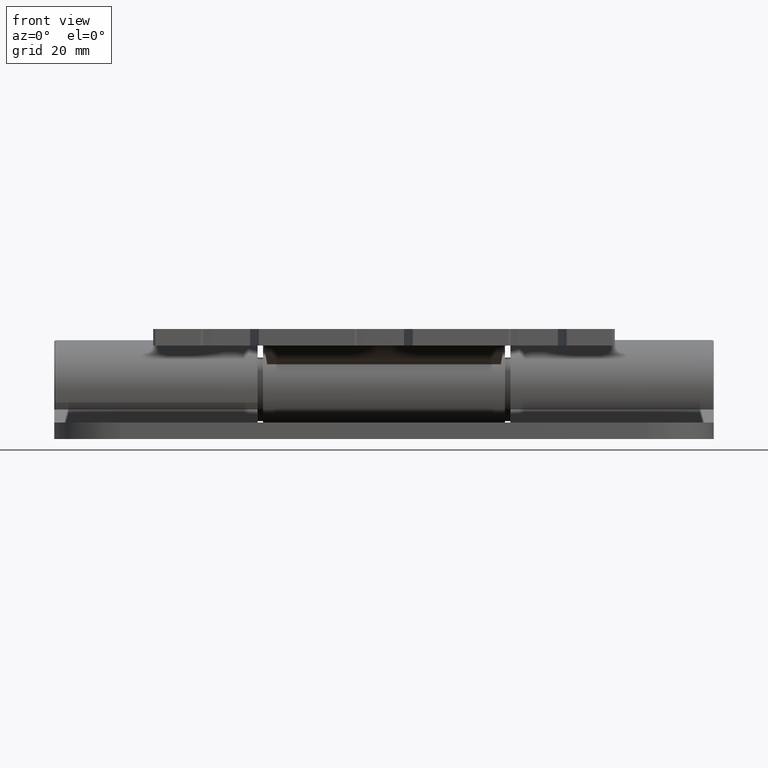
[diagram: clean part render]
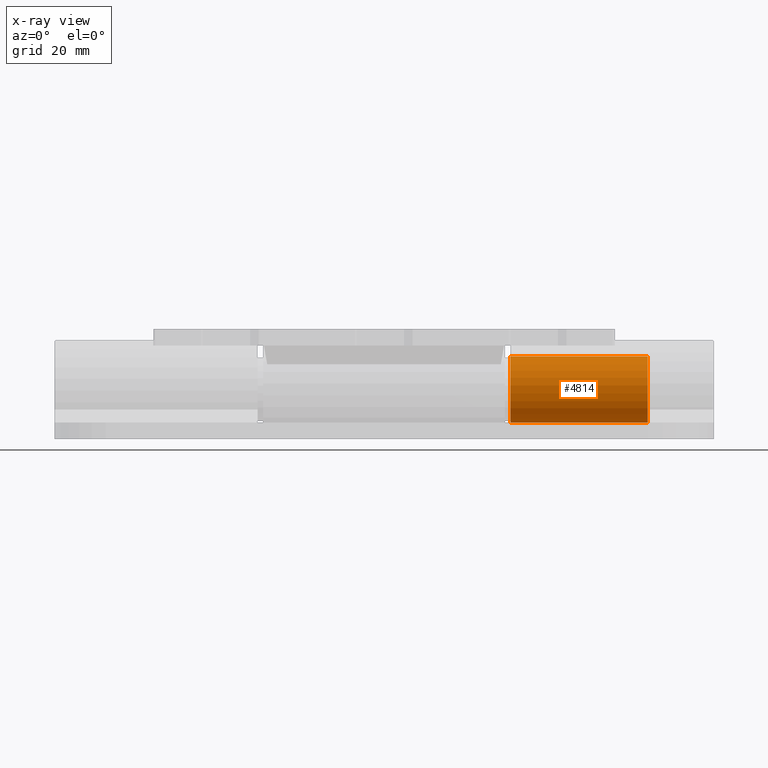
[diagram: x-ray — body ghosted, one internal face saturated and labeled with its STEP entity id]
A machine part, front view, then the same camera in x-ray: the body is ghosted and one INTERNAL B-rep face — a face not visible from any outside direction — is saturated and labeled: STEP entity #4814.
In plain terms, the highlighted cylindrical surface (bore or boss wall) has radius 6 mm, axis along (-1, -0, -0).
Its self-contained STEP definition (entity closure, byte-faithful):
#128 = EDGE_LOOP ( 'NONE', ( #10851 ) ) ;
#385 = CARTESIAN_POINT ( 'NONE',  ( 25.00000000000007100, -3.469446951953620500E-014, 1.474514954580285100E-014 ) ) ;
#594 = CARTESIAN_POINT ( 'NONE',  ( 25.50000000000007100, -1.561251128379126100E-014, 8.673617379884120300E-016 ) ) ;
#672 = AXIS2_PLACEMENT_3D ( 'NONE', #1428, #3585, #13636 ) ;
#1428 = CARTESIAN_POINT ( 'NONE',  ( 0.0000000000000000000, 0.0000000000000000000, 0.0000000000000000000 ) ) ;
#1516 = EDGE_CURVE ( 'NONE', #12175, #12175, #1705, .T. ) ;
#1587 = CYLINDRICAL_SURFACE ( 'NONE', #7143, 6.000000000000010700 ) ;
#1705 = CIRCLE ( 'NONE', #11119, 6.000000000000010700 ) ;
#1716 = DIRECTION ( 'NONE',  ( -1.000000000000000000, -4.444556404584033400E-017, -5.812784225393302300E-017 ) ) ;
#2946 = VERTEX_POINT ( 'NONE', #8855 ) ;
#3585 = DIRECTION ( 'NONE',  ( -1.000000000000000000, -4.444556404584033400E-017, -5.812784225393302300E-017 ) ) ;
#4814 = ADVANCED_FACE ( 'NONE', ( #5793, #6481 ), #1587, .F. ) ;
#4965 = EDGE_LOOP ( 'NONE', ( #9447 ) ) ;
#5793 = FACE_OUTER_BOUND ( 'NONE', #128, .T. ) ;
#6481 = FACE_OUTER_BOUND ( 'NONE', #4965, .T. ) ;
#7143 = AXIS2_PLACEMENT_3D ( 'NONE', #594, #1716, #11857 ) ;
#7251 = CIRCLE ( 'NONE', #672, 6.000000000000010700 ) ;
#7338 = CARTESIAN_POINT ( 'NONE',  ( 25.00000000000007100, -3.536060333431129900E-014, 6.000000000000024900 ) ) ;
#7347 = EDGE_CURVE ( 'NONE', #2946, #2946, #7251, .T. ) ;
#8855 = CARTESIAN_POINT ( 'NONE',  ( 3.487670535235975900E-016, -6.661338147750939200E-016, 6.000000000000010700 ) ) ;
#9447 = ORIENTED_EDGE ( 'NONE', *, *, #7347, .T. ) ;
#10851 = ORIENTED_EDGE ( 'NONE', *, *, #1516, .F. ) ;
#11119 = AXIS2_PLACEMENT_3D ( 'NONE', #385, #12759, #12704 ) ;
#11857 = DIRECTION ( 'NONE',  ( 0.0000000000000000000, -1.110223024625155600E-016, 1.000000000000000000 ) ) ;
#12175 = VERTEX_POINT ( 'NONE', #7338 ) ;
#12704 = DIRECTION ( 'NONE',  ( 0.0000000000000000000, -1.110223024625155600E-016, 1.000000000000000000 ) ) ;
#12759 = DIRECTION ( 'NONE',  ( -1.000000000000000000, -4.444556404584033400E-017, -5.812784225393302300E-017 ) ) ;
#13636 = DIRECTION ( 'NONE',  ( 5.812784225393282500E-017, -1.110223024625154600E-016, 1.000000000000000000 ) ) ;